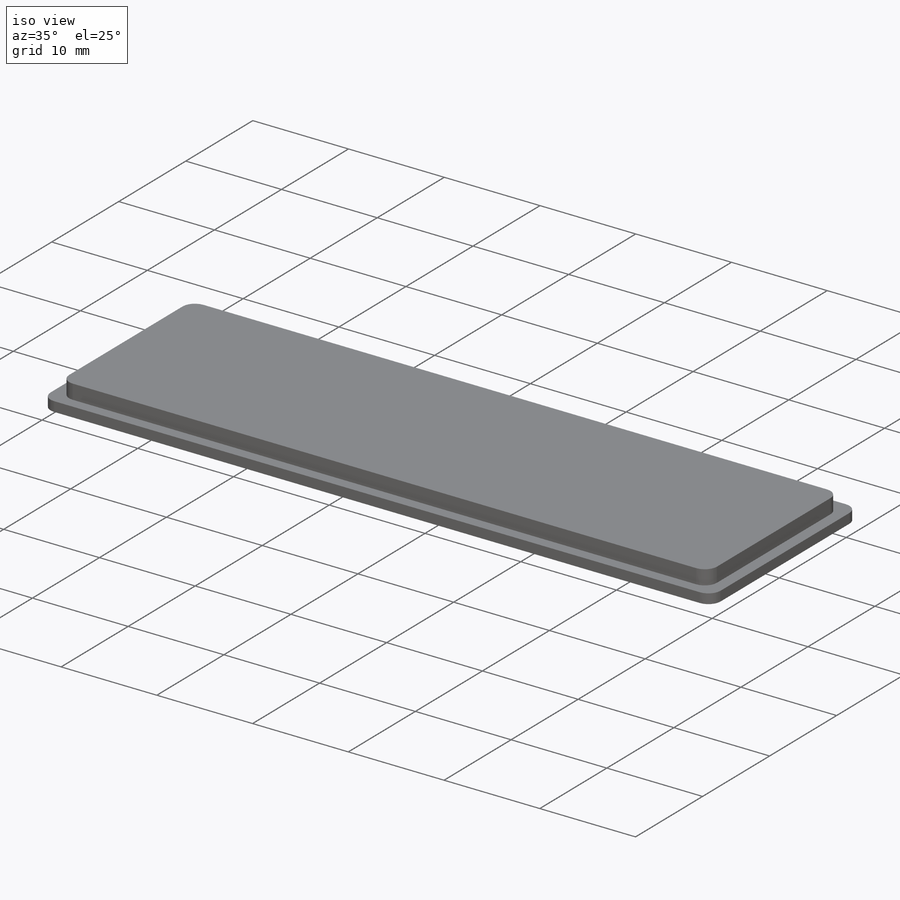
[diagram: iso view]
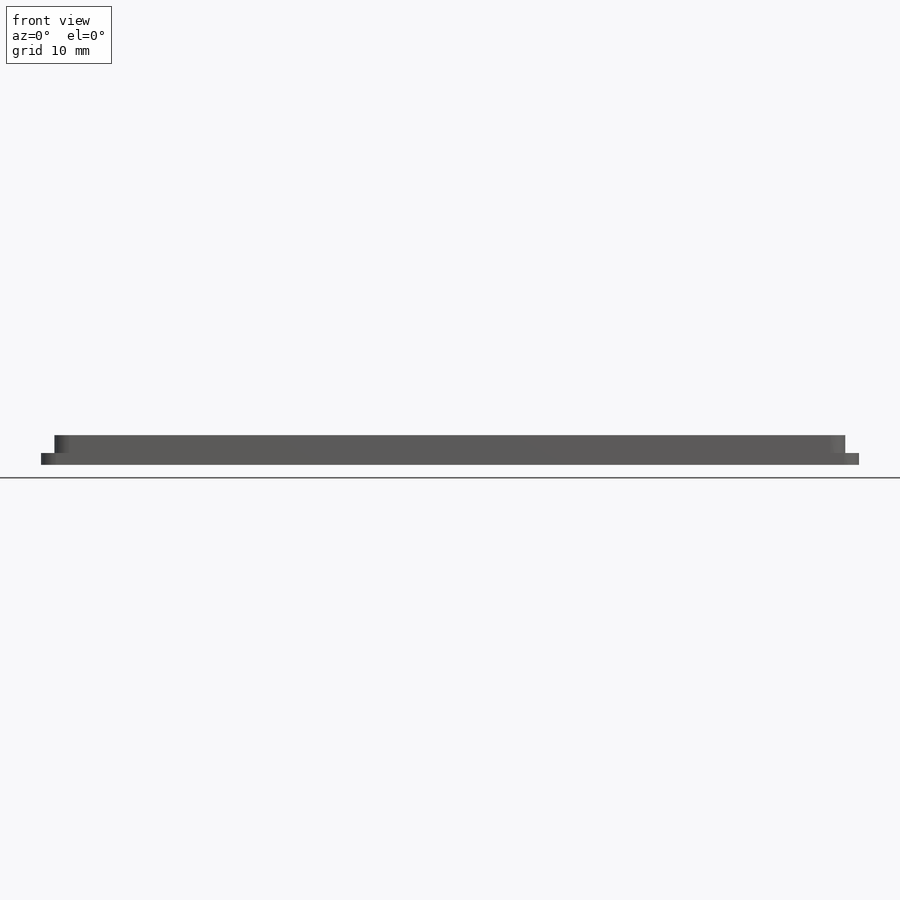
[diagram: front view]
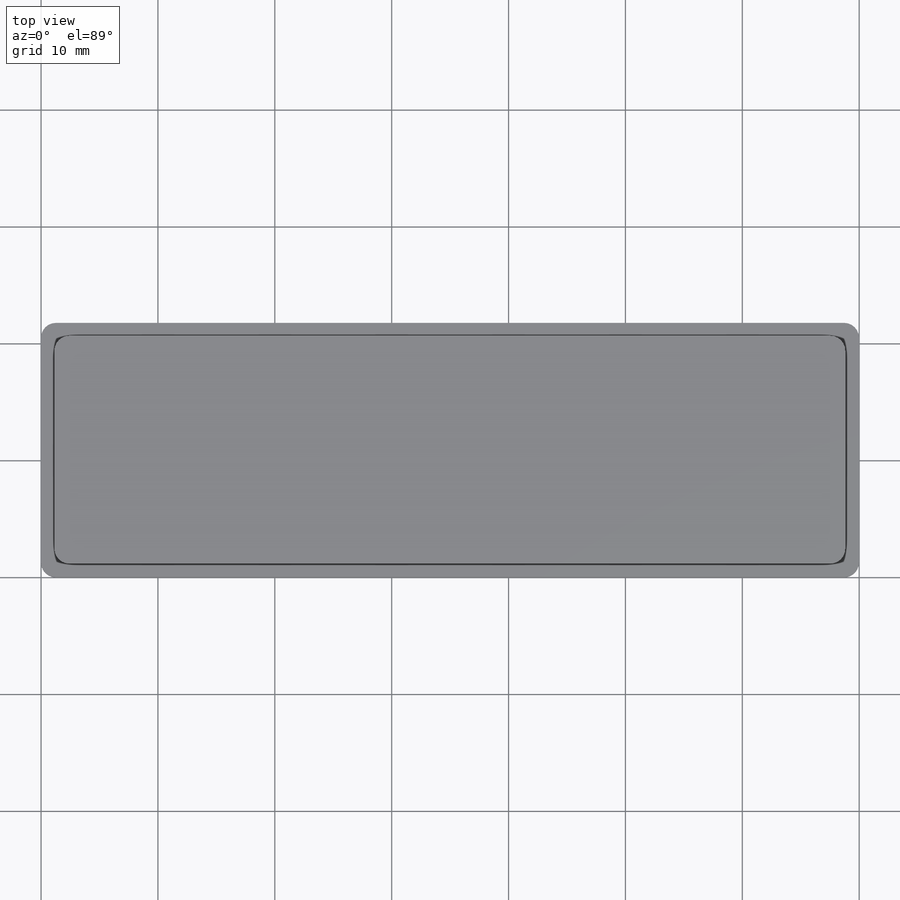
[diagram: top view]
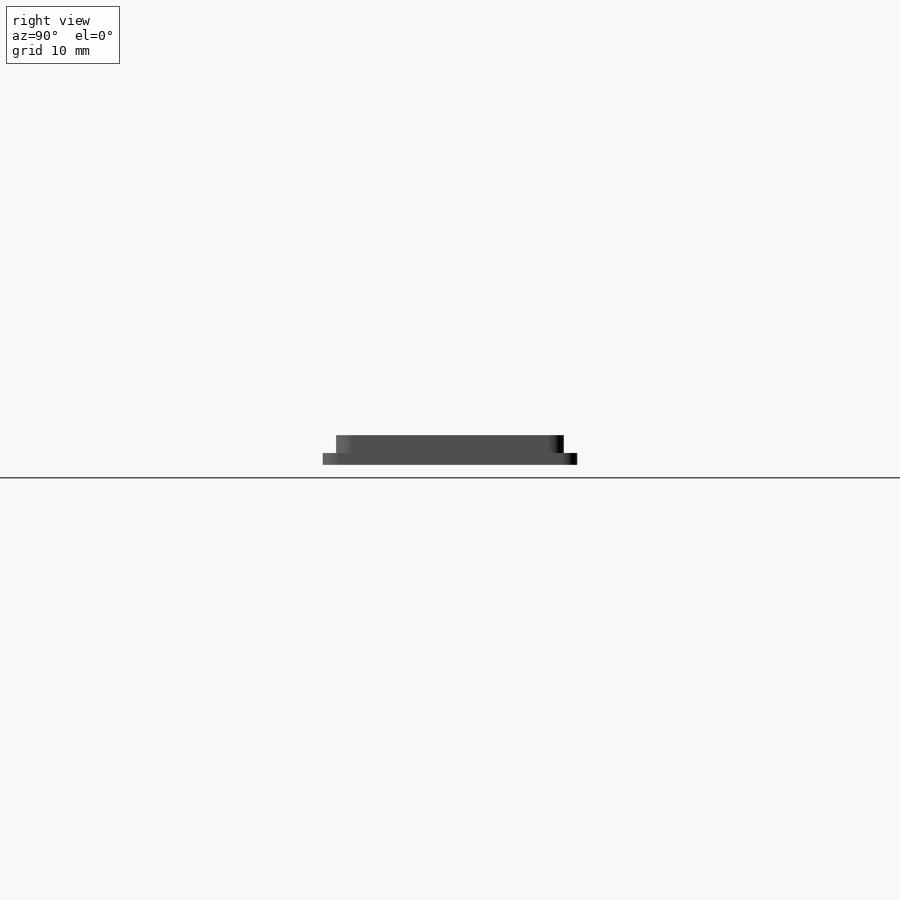
[diagram: right view]
SOLIDWORKS PART (.sldprt)
format: sldprt  version: not decoded by parser v0  size: 168,960 bytes
history: native  units: mm
features: sketch x2, extrude x2, material x1, fillet x1 (+13 scaffold rows collapsed)
feature tree (19):
  scaffold x13  (default folders/planes/origin — collapsed)
  material  "Material <not specified>"
  sketch  "Sketch2"  dims[D1=21.7678mm D2=~69.98716mm]
  extrude  "Boss-Extrude1"  Depth=1.016mm
  sketch  "Sketch3"  dims[D1=67.6656mm D2=19.4818mm D3=1.143mm D4=1.143mm]
  extrude  "Boss-Extrude2"  Depth=1.524mm
  fillet  "Fillet1"  Radius=1.27mm
decode coverage: 5 of 5 modeling features carry decoded parameters
note: ~ marks probable driven/reference dimensions
note: suppression state not decoded; provenance and decode notes live in map.json
